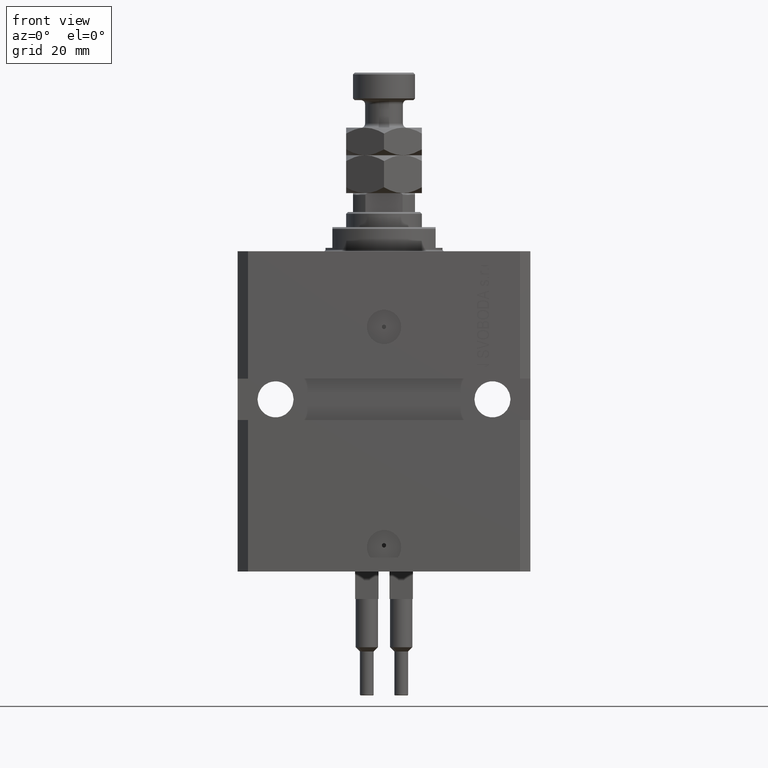
[diagram: clean part render]
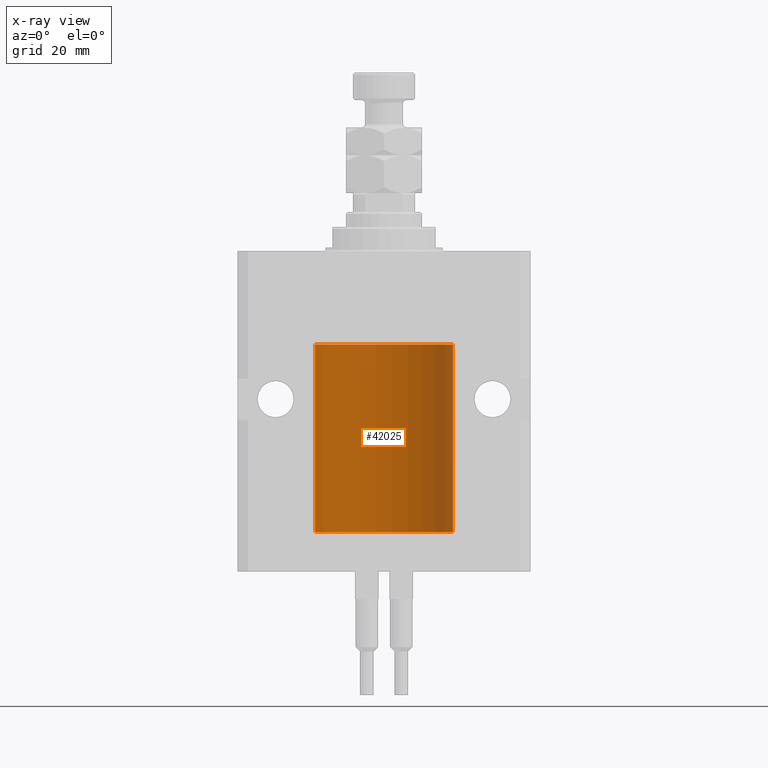
[diagram: x-ray — body ghosted, one internal face saturated and labeled with its STEP entity id]
A machine part, front view, then the same camera in x-ray: the body is ghosted and one INTERNAL B-rep face — a face not visible from any outside direction — is saturated and labeled: STEP entity #42025.
In plain terms, the highlighted cylindrical surface (partial cylindrical patch) has radius 20 mm, axis along (0, 0, 1).
Its self-contained STEP definition (entity closure, byte-faithful):
#340 = EDGE_CURVE ( 'NONE', #40236, #48255, #12890, .T. ) ;
#642 = CARTESIAN_POINT ( 'NONE',  ( 0.000000000000000000, 0.000000000000000000, -81.60000000000000853 ) ) ;
#1225 = DIRECTION ( 'NONE',  ( -0.000000000000000000, -0.000000000000000000, 1.000000000000000000 ) ) ;
#1536 = AXIS2_PLACEMENT_3D ( 'NONE', #25567, #10877, #2502 ) ;
#1599 = ORIENTED_EDGE ( 'NONE', *, *, #28938, .F. ) ;
#2502 = DIRECTION ( 'NONE',  ( 1.000000000000000000, 0.000000000000000000, 0.000000000000000000 ) ) ;
#3883 = EDGE_CURVE ( 'NONE', #50128, #13555, #7164, .T. ) ;
#4283 = ORIENTED_EDGE ( 'NONE', *, *, #8291, .F. ) ;
#7164 = B_SPLINE_CURVE_WITH_KNOTS ( 'NONE', 3,
 ( #36862, #25719, #45721, #10770, #14315, #41664 ),
 .UNSPECIFIED., .F., .F.,
 ( 4, 2, 4 ),
 ( 0.0009772989342736221503, 0.001465726722058849005, 0.001954154509844075859 ),
 .UNSPECIFIED. ) ;
#7313 = LINE ( 'NONE', #49358, #32628 ) ;
#7407 = VERTEX_POINT ( 'NONE', #17641 ) ;
#7828 = CARTESIAN_POINT ( 'NONE',  ( 20.00000000000000000, -4.058908006348821872E-15, -79.62500000000000000 ) ) ;
#8007 = CIRCLE ( 'NONE', #26640, 20.00000000000000000 ) ;
#8291 = EDGE_CURVE ( 'NONE', #44271, #13571, #23718, .T. ) ;
#8402 = CARTESIAN_POINT ( 'NONE',  ( 19.99023198964909298, 0.6250000000081574747, -78.99999999999911893 ) ) ;
#8572 = CARTESIAN_POINT ( 'NONE',  ( 19.99256353007439202, 0.5574106582031174151, -79.32639035180115172 ) ) ;
#9325 = CARTESIAN_POINT ( 'NONE',  ( 20.00000000000010303, 3.555666352936568165E-13, -78.37499999999667466 ) ) ;
#10770 = CARTESIAN_POINT ( 'NONE',  ( 19.99769474220011034, 0.3253030616682413001, -78.44140633897630721 ) ) ;
#10877 = DIRECTION ( 'NONE',  ( -0.000000000000000000, -0.000000000000000000, 1.000000000000000000 ) ) ;
#12135 = CARTESIAN_POINT ( 'NONE',  ( 19.99023198964934167, 0.6250000000002757794, -79.16311014829327064 ) ) ;
#12869 = B_SPLINE_CURVE_WITH_KNOTS ( 'NONE', 3,
 ( #7828, #28073, #39475, #47070, #46824, #8572, #12135, #19465 ),
 .UNSPECIFIED., .F., .F.,
 ( 4, 2, 2, 4 ),
 ( 3.944467879762244826E-18, 0.0002443247335684012008, 0.0004886494671367983900, 0.0009772989342736221503 ),
 .UNSPECIFIED. ) ;
#12890 = LINE ( 'NONE', #47083, #26817 ) ;
#13555 = VERTEX_POINT ( 'NONE', #9325 ) ;
#13571 = VERTEX_POINT ( 'NONE', #48058 ) ;
#14165 = CARTESIAN_POINT ( 'NONE',  ( 0.000000000000000000, 0.000000000000000000, -27.10000000000000142 ) ) ;
#14315 = CARTESIAN_POINT ( 'NONE',  ( 19.99999999999999645, 0.1631318418333158327, -78.37500000000015632 ) ) ;
#17641 = CARTESIAN_POINT ( 'NONE',  ( 20.00000000000000000, 0.000000000000000000, -27.10000000000000142 ) ) ;
#19465 = CARTESIAN_POINT ( 'NONE',  ( 19.99023198964909298, 0.6250000000081574747, -78.99999999999911893 ) ) ;
#19694 = EDGE_CURVE ( 'NONE', #13555, #7407, #7313, .T. ) ;
#19887 = DIRECTION ( 'NONE',  ( 1.000000000000000000, 0.000000000000000000, 0.000000000000000000 ) ) ;
#20160 = CIRCLE ( 'NONE', #30687, 20.00000000000000000 ) ;
#23718 = LINE ( 'NONE', #50068, #49321 ) ;
#25567 = CARTESIAN_POINT ( 'NONE',  ( 0.000000000000000000, 0.000000000000000000, -81.60000000000000853 ) ) ;
#25719 = CARTESIAN_POINT ( 'NONE',  ( 19.99023198964936299, 0.6249999999995806688, -78.83696384779808852 ) ) ;
#25974 = ORIENTED_EDGE ( 'NONE', *, *, #19694, .T. ) ;
#26640 = AXIS2_PLACEMENT_3D ( 'NONE', #642, #46991, #19887 ) ;
#26780 = DIRECTION ( 'NONE',  ( -0.000000000000000000, -0.000000000000000000, 1.000000000000000000 ) ) ;
#26817 = VECTOR ( 'NONE', #1225, 1000.000000000000000 ) ;
#27302 = CARTESIAN_POINT ( 'NONE',  ( 20.00000000000000000, -4.058908006348821872E-15, -79.62500000000000000 ) ) ;
#28073 = CARTESIAN_POINT ( 'NONE',  ( 19.99999999999999645, 0.08261455565447825555, -79.62499999999997158 ) ) ;
#28938 = EDGE_CURVE ( 'NONE', #40236, #44271, #8007, .T. ) ;
#29625 = DIRECTION ( 'NONE',  ( 0.000000000000000000, 0.000000000000000000, 1.000000000000000000 ) ) ;
#29878 = DIRECTION ( 'NONE',  ( 1.000000000000000000, 0.000000000000000000, 0.000000000000000000 ) ) ;
#30687 = AXIS2_PLACEMENT_3D ( 'NONE', #14165, #29625, #29878 ) ;
#31923 = EDGE_LOOP ( 'NONE', ( #4283, #1599, #39684, #46584, #32336, #25974, #36424 ) ) ;
#32336 = ORIENTED_EDGE ( 'NONE', *, *, #3883, .T. ) ;
#32628 = VECTOR ( 'NONE', #49870, 1000.000000000000000 ) ;
#33501 = CARTESIAN_POINT ( 'NONE',  ( 20.00000000000000000, 0.000000000000000000, -81.60000000000000853 ) ) ;
#36424 = ORIENTED_EDGE ( 'NONE', *, *, #42065, .T. ) ;
#36862 = CARTESIAN_POINT ( 'NONE',  ( 19.99023198964909298, 0.6250000000081574747, -78.99999999999911893 ) ) ;
#37474 = CYLINDRICAL_SURFACE ( 'NONE', #1536, 20.00000000000000000 ) ;
#39475 = CARTESIAN_POINT ( 'NONE',  ( 19.99947351343144319, 0.1636818329565372654, -79.60872855715646779 ) ) ;
#39684 = ORIENTED_EDGE ( 'NONE', *, *, #340, .T. ) ;
#40236 = VERTEX_POINT ( 'NONE', #33501 ) ;
#41664 = CARTESIAN_POINT ( 'NONE',  ( 20.00000000000010303, 3.555666352936568165E-13, -78.37499999999667466 ) ) ;
#42025 = ADVANCED_FACE ( 'NONE', ( #48851 ), #37474, .F. ) ;
#42065 = EDGE_CURVE ( 'NONE', #7407, #13571, #20160, .T. ) ;
#42988 = EDGE_CURVE ( 'NONE', #48255, #50128, #12869, .T. ) ;
#44271 = VERTEX_POINT ( 'NONE', #48080 ) ;
#45721 = CARTESIAN_POINT ( 'NONE',  ( 19.99253733128256627, 0.5586305947779004466, -78.67476036735259015 ) ) ;
#46584 = ORIENTED_EDGE ( 'NONE', *, *, #42988, .T. ) ;
#46824 = CARTESIAN_POINT ( 'NONE',  ( 19.99638788807192924, 0.3844440352705359998, -79.49948058986481669 ) ) ;
#46991 = DIRECTION ( 'NONE',  ( 0.000000000000000000, 0.000000000000000000, 1.000000000000000000 ) ) ;
#47070 = CARTESIAN_POINT ( 'NONE',  ( 19.99766100389833312, 0.3150982863324784944, -79.54594438241281296 ) ) ;
#47083 = CARTESIAN_POINT ( 'NONE',  ( 20.00000000000000000, 0.000000000000000000, -81.60000000000000853 ) ) ;
#48058 = CARTESIAN_POINT ( 'NONE',  ( -20.00000000000000000, 2.449293598294706513E-15, -27.10000000000000142 ) ) ;
#48080 = CARTESIAN_POINT ( 'NONE',  ( -20.00000000000000000, 2.449293598294706513E-15, -81.60000000000000853 ) ) ;
#48255 = VERTEX_POINT ( 'NONE', #27302 ) ;
#48851 = FACE_OUTER_BOUND ( 'NONE', #31923, .T. ) ;
#49321 = VECTOR ( 'NONE', #26780, 1000.000000000000000 ) ;
#49358 = CARTESIAN_POINT ( 'NONE',  ( 20.00000000000000000, 0.000000000000000000, -81.60000000000000853 ) ) ;
#49870 = DIRECTION ( 'NONE',  ( -0.000000000000000000, -0.000000000000000000, 1.000000000000000000 ) ) ;
#50068 = CARTESIAN_POINT ( 'NONE',  ( -20.00000000000000000, 2.449293598294706513E-15, -81.60000000000000853 ) ) ;
#50128 = VERTEX_POINT ( 'NONE', #8402 ) ;